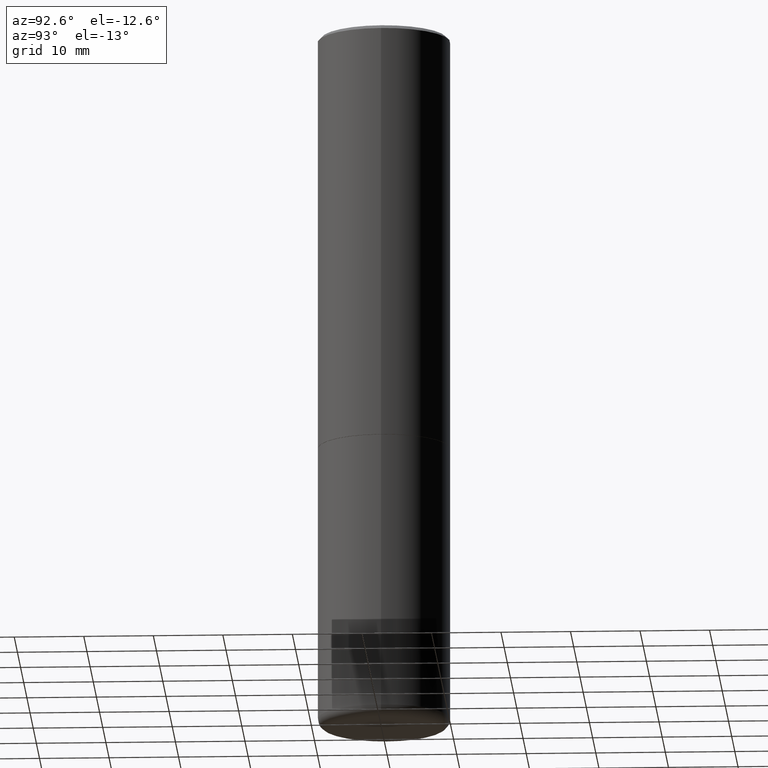
[diagram: clean part render]
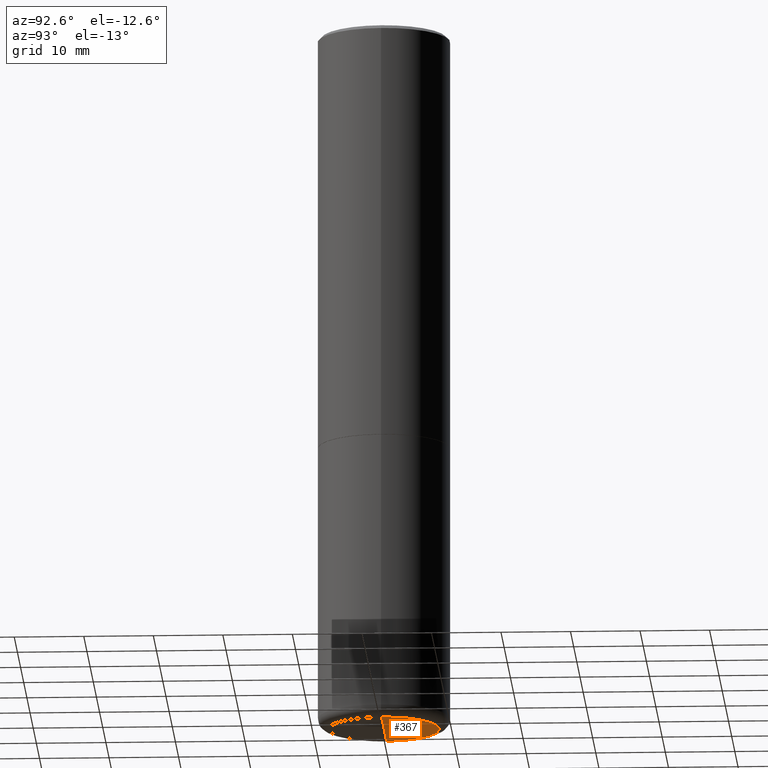
[diagram: same view with one face highlighted and labeled with its STEP entity id]
A machine part, auxiliary view. The second image highlights one B-rep face of the part: STEP entity #367.
In plain terms, the highlighted conical surface has half-angle 89 deg.
Its self-contained STEP definition (entity closure, byte-faithful):
#4 = CARTESIAN_POINT ( 'NONE',  ( 0.3139528556137644033, -1.611976638653431424E-14, -3.999990861709384227 ) ) ;
#10 = LINE ( 'NONE', #217, #375 ) ;
#21 = EDGE_LOOP ( 'NONE', ( #26, #334, #308 ) ) ;
#26 = ORIENTED_EDGE ( 'NONE', *, *, #250, .F. ) ;
#36 = EDGE_CURVE ( 'NONE', #434, #163, #226, .T. ) ;
#38 = DIRECTION ( 'NONE',  ( -1.000000000000000000, 6.982962677686265922E-15, 0.000000000000000000 ) ) ;
#107 = CIRCLE ( 'NONE', #439, 0.3139528556137635151 ) ;
#150 = DIRECTION ( 'NONE',  ( 1.000000000000000000, -6.982962677686265133E-15, 0.000000000000000000 ) ) ;
#154 = DIRECTION ( 'NONE',  ( 2.445468806185136597E-29, -3.491481338843145583E-15, -1.000000000000000000 ) ) ;
#160 = CARTESIAN_POINT ( 'NONE',  ( 9.768309151834167291E-29, -1.394696380848847214E-14, -3.994510794230248685 ) ) ;
#163 = VERTEX_POINT ( 'NONE', #245 ) ;
#214 = CARTESIAN_POINT ( 'NONE',  ( 9.781852877335904150E-29, -1.396589344920142703E-14, -3.999990861709384227 ) ) ;
#217 = CARTESIAN_POINT ( 'NONE',  ( 2.039126261454624863E-19, -1.394675989586242561E-14, -3.994510794230248685 ) ) ;
#226 = LINE ( 'NONE', #292, #410 ) ;
#238 = EDGE_CURVE ( 'NONE', #385, #163, #107, .T. ) ;
#245 = CARTESIAN_POINT ( 'NONE',  ( -0.3139528556137644033, -1.177357237589748675E-14, -3.999990861709384227 ) ) ;
#250 = EDGE_CURVE ( 'NONE', #434, #385, #10, .T. ) ;
#255 = DIRECTION ( 'NONE',  ( -2.445468806185136597E-29, 3.491481338843145583E-15, 1.000000000000000000 ) ) ;
#292 = CARTESIAN_POINT ( 'NONE',  ( -2.039126259500934565E-19, -1.394675989586242561E-14, -3.994510794230248685 ) ) ;
#308 = ORIENTED_EDGE ( 'NONE', *, *, #238, .F. ) ;
#312 = AXIS2_PLACEMENT_3D ( 'NONE', #324, #154, #38 ) ;
#324 = CARTESIAN_POINT ( 'NONE',  ( 1.060467509993676374E-27, -1.514066551259075377E-13, -43.36458953438772568 ) ) ;
#328 = FACE_OUTER_BOUND ( 'NONE', #21, .T. ) ;
#334 = ORIENTED_EDGE ( 'NONE', *, *, #36, .T. ) ;
#347 = CONICAL_SURFACE ( 'NONE', #312, 2255.510300424391971, 1.553343034274959455 ) ;
#367 = ADVANCED_FACE ( 'NONE', ( #328 ), #347, .F. ) ;
#371 = DIRECTION ( 'NONE',  ( -0.9998476951563912696, 6.920964387254056788E-15, -0.01745240643727738114 ) ) ;
#375 = VECTOR ( 'NONE', #390, 39.37007874015748143 ) ;
#385 = VERTEX_POINT ( 'NONE', #4 ) ;
#390 = DIRECTION ( 'NONE',  ( 0.9998476951563912696, -6.920387862090563457E-15, -0.01745240643727738114 ) ) ;
#410 = VECTOR ( 'NONE', #371, 39.37007874015748143 ) ;
#434 = VERTEX_POINT ( 'NONE', #160 ) ;
#439 = AXIS2_PLACEMENT_3D ( 'NONE', #214, #255, #150 ) ;